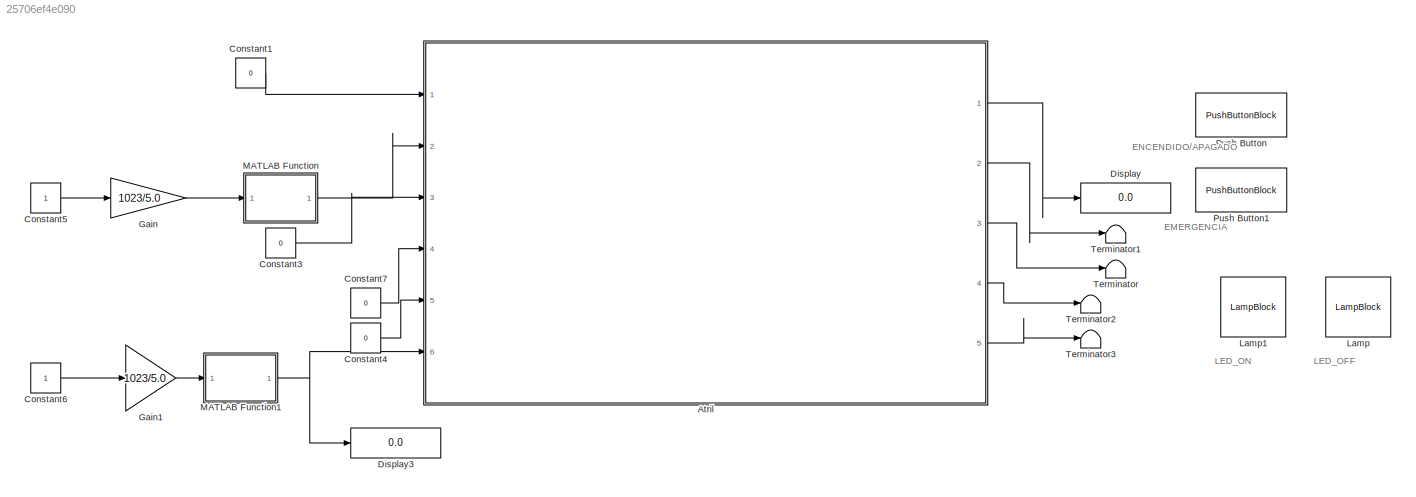
MODEL slx_25706ef4e090
KIND model
CONFIG AbsTol = auto
CONFIG EnableMultiTasking = off
CONFIG FixedStep = auto
CONFIG MaxStep = auto
CONFIG MinStep = auto
CONFIG RelTol = 1e-3
CONFIG SampleTimeConstraint = Unconstrained
CONFIG Solver = VariableStepAuto
CONFIG SolverName = VariableStepAuto
CONFIG StartTime = 0.0
CONFIG StopTime = inf
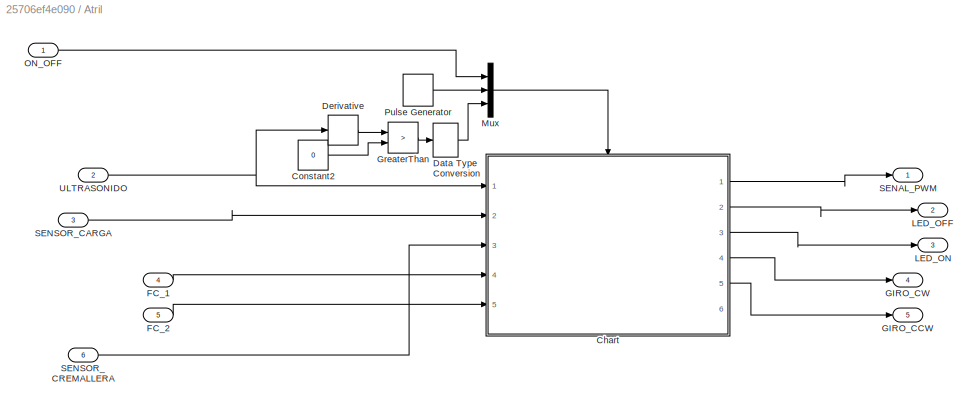
BLOCK [SubSystem] Atril
  Ports = [6, 5]
  RequestExecContextInheritance = off
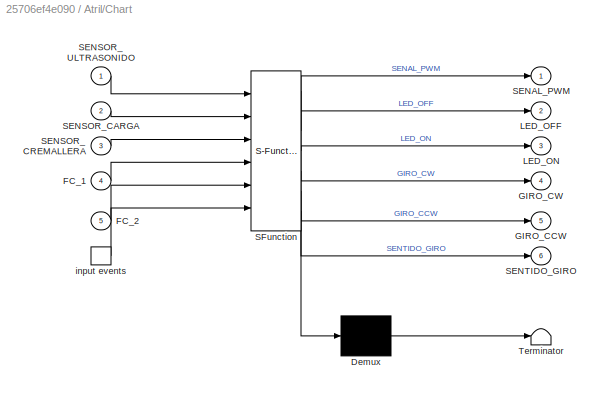
BLOCK [SubSystem] Atril/Chart
  ErrorFcn = Stateflow.Translate.translate
  PermitHierarchicalResolution = ExplicitOnly
  Ports = [5, 6, 0, 1]
  RequestExecContextInheritance = off
  SFBlockType = Chart
  TreatAsAtomicUnit = on
BLOCK [Demux] Atril/Chart/ Demux 
  Outputs = 1
  Ports = [1, 1]
BLOCK [S-Function] Atril/Chart/ SFunction 
  EnableBusSupport = on
  FunctionName = sf_sfun
  PortCounts = [6 7]
  Ports = [6, 7]
  SFcnIsStateOwnerBlock = off
  SFunctionDeploymentMode = off
  Tag = Stateflow S-Function atril_v2 3
BLOCK [Terminator] Atril/Chart/ Terminator 
BLOCK [Inport] Atril/Chart/FC_1
  Port = 4
BLOCK [Inport] Atril/Chart/FC_2
  Port = 5
BLOCK [Outport] Atril/Chart/GIRO_CCW
  Port = 5
BLOCK [Outport] Atril/Chart/GIRO_CW
  Port = 4
BLOCK [Outport] Atril/Chart/LED_OFF
  Port = 2
  VectorParamsAs1DForOutWhenUnconnected = off
BLOCK [Outport] Atril/Chart/LED_ON
  Port = 3
  VectorParamsAs1DForOutWhenUnconnected = off
BLOCK [Outport] Atril/Chart/SENAL_PWM
  VectorParamsAs1DForOutWhenUnconnected = off
BLOCK [Inport] Atril/Chart/SENSOR_CARGA
  Port = 2
BLOCK [Inport] Atril/Chart/SENSOR_CREMALLERA
  Port = 3
BLOCK [Inport] Atril/Chart/SENSOR_ULTRASONIDO
BLOCK [Outport] Atril/Chart/SENTIDO_GIRO
  Port = 6
BLOCK [TriggerPort] Atril/Chart/input events
  Ports = [0, 1]
  ShowOutputPort = on
  StatesWhenEnabling = held
  TriggerType = either
  VariantControl = (inherit)
BLOCK [Constant] Atril/Constant2
  Value = 0
BLOCK [DataTypeConversion] Atril/Data Type Conversion
  OutDataTypeStr = double
  RndMeth = Floor
  SaturateOnIntegerOverflow = off
BLOCK [Derivative] Atril/Derivative
BLOCK [Inport] Atril/FC_1
  Port = 4
BLOCK [Inport] Atril/FC_2
  Port = 5
BLOCK [Outport] Atril/GIRO_CCW
  Port = 5
BLOCK [Outport] Atril/GIRO_CW
  Port = 4
BLOCK [RelationalOperator] Atril/GreaterThan
  InputSameDT = off
  Operator = >
  OutDataTypeStr = boolean
  Ports = [2, 1]
  RndMeth = Simplest
BLOCK [Outport] Atril/LED_OFF
  Port = 2
BLOCK [Outport] Atril/LED_ON
  Port = 3
BLOCK [Mux] Atril/Mux
  DisplayOption = bar
  Inputs = 3
  Ports = [3, 1]
BLOCK [Inport] Atril/ON_OFF
BLOCK [DiscretePulseGenerator] Atril/Pulse Generator
  Period = 10
  Ports = [0, 1]
  PulseType = Time based
  PulseWidth = 0.5
BLOCK [Outport] Atril/SENAL_PWM
BLOCK [Inport] Atril/SENSOR_CARGA
  Port = 3
BLOCK [Inport] Atril/SENSOR_CREMALLERA
  Port = 6
BLOCK [Inport] Atril/ULTRASONIDO
  Port = 2
BLOCK [Constant] Constant1
  Value = 0
BLOCK [Constant] Constant3
  Value = 0
BLOCK [Constant] Constant4
  Value = 0
BLOCK [Constant] Constant5
BLOCK [Constant] Constant6
BLOCK [Constant] Constant7
  Value = 0
BLOCK [Display] Display
  Decimation = 1
  Ports = [1]
BLOCK [Display] Display3
  Decimation = 1
  Ports = [1]
BLOCK [Gain] Gain
  Gain = 1023/5.0
BLOCK [Gain] Gain1
  Gain = 1023/5.0
BLOCK [LampBlock] Lamp
  WebBlockId = 10
BLOCK [LampBlock] Lamp1
  WebBlockId = 11
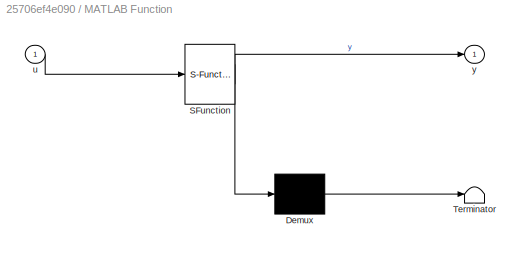
BLOCK [SubSystem] MATLAB Function
  ErrorFcn = Stateflow.Translate.translate
  PermitHierarchicalResolution = ExplicitOnly
  Ports = [1, 1]
  RequestExecContextInheritance = off
  SFBlockType = MATLAB Function
  TreatAsAtomicUnit = on
BLOCK [Demux] MATLAB Function/ Demux 
  Outputs = 1
  Ports = [1, 1]
BLOCK [S-Function] MATLAB Function/ SFunction 
  EnableBusSupport = on
  FunctionName = sf_sfun
  PortCounts = [1 2]
  Ports = [1, 2]
  SFcnIsStateOwnerBlock = off
  SFunctionDeploymentMode = off
  Tag = Stateflow S-Function atril_v2 2
BLOCK [Terminator] MATLAB Function/ Terminator 
BLOCK [Inport] MATLAB Function/u
BLOCK [Outport] MATLAB Function/y
  VectorParamsAs1DForOutWhenUnconnected = off
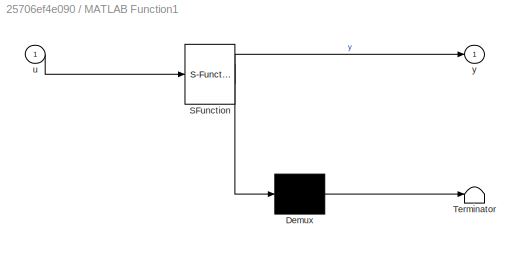
BLOCK [SubSystem] MATLAB Function1
  ErrorFcn = Stateflow.Translate.translate
  PermitHierarchicalResolution = ExplicitOnly
  Ports = [1, 1]
  RequestExecContextInheritance = off
  SFBlockType = MATLAB Function
  TreatAsAtomicUnit = on
BLOCK [Demux] MATLAB Function1/ Demux 
  Outputs = 1
  Ports = [1, 1]
BLOCK [S-Function] MATLAB Function1/ SFunction 
  EnableBusSupport = on
  FunctionName = sf_sfun
  PortCounts = [1 2]
  Ports = [1, 2]
  SFcnIsStateOwnerBlock = off
  SFunctionDeploymentMode = off
  Tag = Stateflow S-Function atril_v2 1
BLOCK [Terminator] MATLAB Function1/ Terminator 
BLOCK [Inport] MATLAB Function1/u
BLOCK [Outport] MATLAB Function1/y
  VectorParamsAs1DForOutWhenUnconnected = off
BLOCK [PushButtonBlock] Push Button
  WebBlockId = 25
BLOCK [PushButtonBlock] Push Button1
  WebBlockId = 26
BLOCK [Terminator] Terminator
BLOCK [Terminator] Terminator1
BLOCK [Terminator] Terminator2
BLOCK [Terminator] Terminator3
ANNOTATION (root): EMERGENCIA
ANNOTATION (root): ENCENDIDO/APAGADO
ANNOTATION (root): LED_OFF
ANNOTATION (root): LED_ON
LINE Atril/Chart:1 -> Atril/SENAL_PWM:1
LINE Atril/Chart:2 -> Atril/LED_OFF:1
LINE Atril/Chart:3 -> Atril/LED_ON:1
LINE Atril/Chart:4 -> Atril/GIRO_CW:1
LINE Atril/Chart:5 -> Atril/GIRO_CCW:1
LINE Atril/Constant2:1 -> Atril/GreaterThan:2
LINE Atril/Data Type Conversion:1 -> Atril/Mux:3
LINE Atril/Derivative:1 -> Atril/GreaterThan:1
LINE Atril/FC_1:1 -> Atril/Chart:4
LINE Atril/FC_2:1 -> Atril/Chart:5
LINE Atril/GreaterThan:1 -> Atril/Data Type Conversion:1
LINE Atril/Mux:1 -> Atril/Chart:trigger
LINE Atril/ON_OFF:1 -> Atril/Mux:1
LINE Atril/Pulse Generator:1 -> Atril/Mux:2
LINE Atril/SENSOR_CARGA:1 -> Atril/Chart:2
LINE Atril/SENSOR_CREMALLERA:1 -> Atril/Chart:3
NET Atril/ULTRASONIDO:1 -> Atril/Chart:1, Atril/Derivative:1
LINE Atril:1 -> Display:1
LINE Atril:2 -> Terminator1:1
LINE Atril:3 -> Terminator:1
LINE Atril:4 -> Terminator2:1
LINE Atril:5 -> Terminator3:1
LINE Constant1:1 -> Atril:1
LINE Constant3:1 -> Atril:3
LINE Constant4:1 -> Atril:5
LINE Constant5:1 -> Gain:1
LINE Constant6:1 -> Gain1:1
LINE Constant7:1 -> Atril:4
LINE Gain1:1 -> MATLAB Function1:1
LINE Gain:1 -> MATLAB Function:1
NET MATLAB Function1:1 -> Atril:6, Display3:1
LINE MATLAB Function:1 -> Atril:2
note: NET lines group one-source signal fan-out (src -> all destinations, sorted); 1:1 wires keep LINE
CHART MATLAB Function1 states=1 transitions=1
  STATE_LABEL 'eML_blk_kernel()'
  STATE_LABEL 'SCRIPT:\nfunction y = fcn(u)\n\ny = u;\n'
CHART MATLAB Function states=1 transitions=1
  STATE_LABEL 'eML_blk_kernel()'
  STATE_LABEL 'SCRIPT:\nfunction y = fcn(u)\n\ny = u;\n'
CHART Atril/Chart states=8 transitions=14
  STATE_LABEL 'ESTADO_ON\n'
  STATE_LABEL 'e1\nentry:\nLED_ON=1;\nLED_OFF=0;\nSENAL_PWM=0;\nSENTIDO_GIRO=0;\n'
  STATE_LABEL 'Stand_by'
  STATE_LABEL 'e4\nentry:\nSENAL_PWM=0.5;\nGIRO_CW=0;\nGIRO_CCW=1;\n'
  STATE_LABEL 'e2\nentry:\nSENAL_PWM=0.5;\nGIRO_CW=1;\nGIRO_CCW=0;\nFC=SENSOR_ULTRASONIDO*2/1;\n'
  STATE_LABEL 'e3\nentry:\nSENAL_PWM=0;'
  STATE_LABEL '[SENSOR_ULTRASONIDO>1.4]'
  STATE_LABEL '[FC_2==1]'
  STATE_LABEL '[SENSOR_CARGA==1]'
  STATE_LABEL '[SENSOR_CREMALLERA>=FC]'
  STATE_LABEL '[FC_1==1]'
  STATE_LABEL 'e1\nentry:\nLED_ON=1;\nLED_OFF=0;\nSENAL_PWM=0;\nSENTIDO_GIRO=0;\n'
  STATE_LABEL 'Stand_by'
  STATE_LABEL 'e4\nentry:\nSENAL_PWM=0.5;\nGIRO_CW=0;\nGIRO_CCW=1;\n'
  STATE_LABEL 'e2\nentry:\nSENAL_PWM=0.5;\nGIRO_CW=1;\nGIRO_CCW=0;\nFC=SENSOR_ULTRASONIDO*2/1;\n'
  STATE_LABEL 'e3\nentry:\nSENAL_PWM=0;'
  STATE_LABEL 'EMERGENCIA\nentry:\nLED_ON=0;\nLED_OFF=0;\nSENAL_PWM=0;\nSENTIDO_GIRO=0'
  STATE_LABEL 'ESTADO_OFF\nentry:\nLED_ON=0;\nLED_OFF=1;\nSENAL_PWM=0;\nSENTIDO_GIRO=0;\n'
